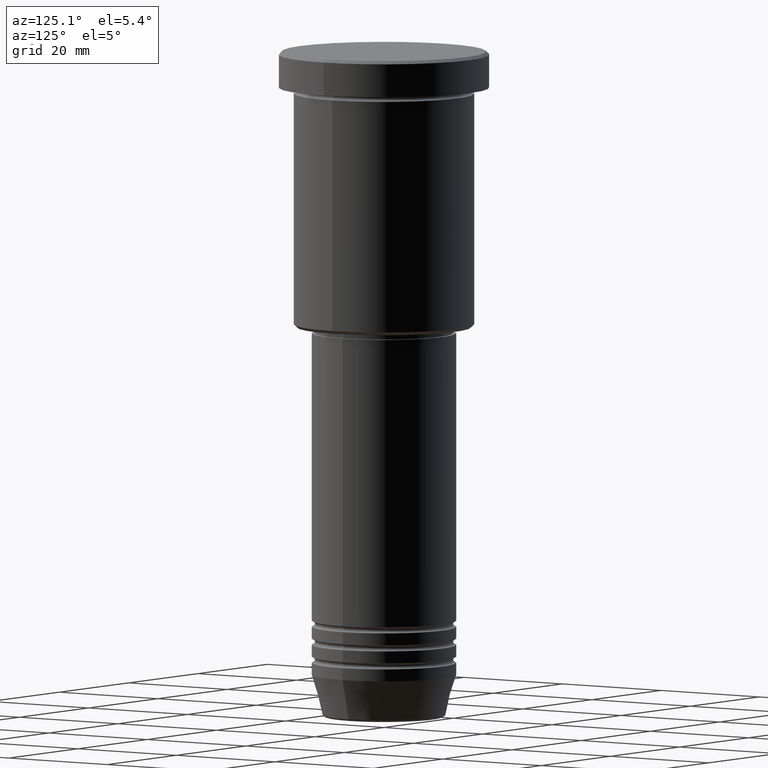
[diagram: clean part render]
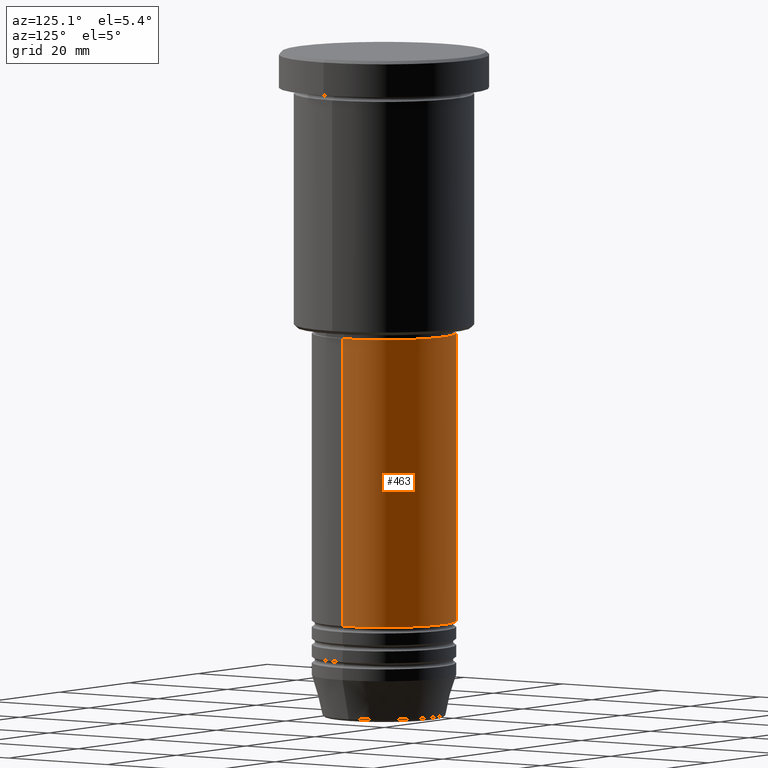
[diagram: same view with one face highlighted and labeled with its STEP entity id]
A machine part, auxiliary view. The second image highlights one B-rep face of the part: STEP entity #463.
In plain terms, the highlighted cylindrical surface (partial cylindrical patch) has radius 12 mm, axis along (-0, -0, 1).
Its self-contained STEP definition (entity closure, byte-faithful):
#42 = CARTESIAN_POINT ( 'NONE',  ( -12.00000000000000000, 1.469576158976823947E-15, -47.00000000000000711 ) ) ;
#70 = EDGE_LOOP ( 'NONE', ( #907, #893, #442, #76 ) ) ;
#72 = CARTESIAN_POINT ( 'NONE',  ( 0.000000000000000000, 0.000000000000000000, -94.99999999999997158 ) ) ;
#76 = ORIENTED_EDGE ( 'NONE', *, *, #485, .F. ) ;
#109 = DIRECTION ( 'NONE',  ( -0.000000000000000000, -0.000000000000000000, 1.000000000000000000 ) ) ;
#119 = EDGE_CURVE ( 'NONE', #1105, #1150, #590, .T. ) ;
#138 = DIRECTION ( 'NONE',  ( 1.000000000000000000, 0.000000000000000000, 0.000000000000000000 ) ) ;
#169 = CARTESIAN_POINT ( 'NONE',  ( 12.00000000000000000, 0.000000000000000000, -47.00000000000000711 ) ) ;
#179 = VECTOR ( 'NONE', #691, 1000.000000000000000 ) ;
#199 = CYLINDRICAL_SURFACE ( 'NONE', #1137, 12.00000000000000000 ) ;
#242 = VERTEX_POINT ( 'NONE', #169 ) ;
#289 = CARTESIAN_POINT ( 'NONE',  ( 12.00000000000000000, 0.000000000000000000, -94.99999999999997158 ) ) ;
#304 = EDGE_CURVE ( 'NONE', #760, #1105, #816, .T. ) ;
#310 = CARTESIAN_POINT ( 'NONE',  ( -12.00000000000000000, 1.469576158976823947E-15, -94.99999999999997158 ) ) ;
#374 = CARTESIAN_POINT ( 'NONE',  ( 12.00000000000000000, 0.000000000000000000, 0.000000000000000000 ) ) ;
#442 = ORIENTED_EDGE ( 'NONE', *, *, #1145, .F. ) ;
#452 = AXIS2_PLACEMENT_3D ( 'NONE', #72, #1169, #891 ) ;
#462 = DIRECTION ( 'NONE',  ( 1.000000000000000000, 0.000000000000000000, 0.000000000000000000 ) ) ;
#463 = ADVANCED_FACE ( 'NONE', ( #1017 ), #199, .T. ) ;
#485 = EDGE_CURVE ( 'NONE', #760, #242, #828, .T. ) ;
#492 = CARTESIAN_POINT ( 'NONE',  ( -12.00000000000000000, 1.469576158976823947E-15, 0.000000000000000000 ) ) ;
#534 = CIRCLE ( 'NONE', #749, 12.00000000000000000 ) ;
#554 = CARTESIAN_POINT ( 'NONE',  ( 0.000000000000000000, 0.000000000000000000, 0.000000000000000000 ) ) ;
#557 = CARTESIAN_POINT ( 'NONE',  ( 0.000000000000000000, 0.000000000000000000, -47.00000000000000711 ) ) ;
#590 = LINE ( 'NONE', #492, #179 ) ;
#691 = DIRECTION ( 'NONE',  ( -0.000000000000000000, -0.000000000000000000, 1.000000000000000000 ) ) ;
#739 = DIRECTION ( 'NONE',  ( -0.000000000000000000, -0.000000000000000000, 1.000000000000000000 ) ) ;
#749 = AXIS2_PLACEMENT_3D ( 'NONE', #557, #848, #138 ) ;
#760 = VERTEX_POINT ( 'NONE', #289 ) ;
#816 = CIRCLE ( 'NONE', #452, 12.00000000000000000 ) ;
#828 = LINE ( 'NONE', #374, #1022 ) ;
#848 = DIRECTION ( 'NONE',  ( -0.000000000000000000, -0.000000000000000000, 1.000000000000000000 ) ) ;
#891 = DIRECTION ( 'NONE',  ( 1.000000000000000000, 0.000000000000000000, 0.000000000000000000 ) ) ;
#893 = ORIENTED_EDGE ( 'NONE', *, *, #119, .T. ) ;
#907 = ORIENTED_EDGE ( 'NONE', *, *, #304, .T. ) ;
#1017 = FACE_OUTER_BOUND ( 'NONE', #70, .T. ) ;
#1022 = VECTOR ( 'NONE', #739, 1000.000000000000000 ) ;
#1105 = VERTEX_POINT ( 'NONE', #310 ) ;
#1137 = AXIS2_PLACEMENT_3D ( 'NONE', #554, #109, #462 ) ;
#1145 = EDGE_CURVE ( 'NONE', #242, #1150, #534, .T. ) ;
#1150 = VERTEX_POINT ( 'NONE', #42 ) ;
#1169 = DIRECTION ( 'NONE',  ( -0.000000000000000000, -0.000000000000000000, 1.000000000000000000 ) ) ;